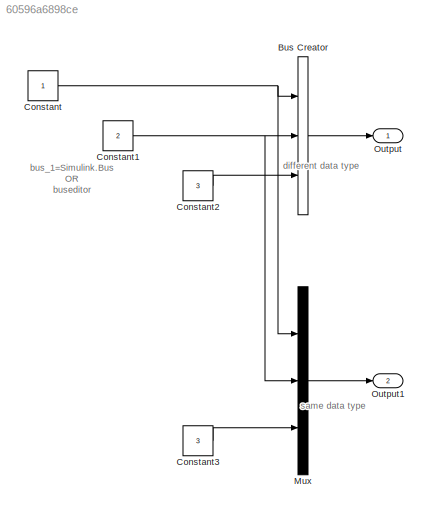
MODEL slx_60596a6898ce
KIND model
CONFIG AbsTol = auto
CONFIG EnableMultiTasking = off
CONFIG FixedStep = auto
CONFIG MaxStep = auto
CONFIG MinStep = auto
CONFIG RelTol = 1e-3
CONFIG SampleTimeConstraint = Unconstrained
CONFIG Solver = VariableStepAuto
CONFIG SolverName = VariableStepAuto
CONFIG StartTime = 0.0
CONFIG StopTime = 10.0
BLOCK [BusCreator] Bus Creator
  DisplayOption = bar
  InheritFromInputs = on
  Inputs = 3
  OutDataTypeStr = Bus:bus_1
  Ports = [3, 1]
BLOCK [Constant] Constant
  OutDataTypeStr = int16
BLOCK [Constant] Constant1
  OutDataTypeStr = int16
  Value = 2
BLOCK [Constant] Constant2
  OutDataTypeStr = uint16
  Value = 3
BLOCK [Constant] Constant3
  OutDataTypeStr = int16
  Value = 3
BLOCK [Mux] Mux
  DisplayOption = bar
  Inputs = 3
  Ports = [3, 1]
BLOCK [Outport] Output
  IconDisplay = Port number
  OutDataTypeStr = Bus:bus_1
BLOCK [Outport] Output1
  IconDisplay = Port number
  Port = 2
ANNOTATION (root): bus_1=Simulink.Bus OR buseditor
ANNOTATION (root): different data type
ANNOTATION (root): same data type
LINE Bus Creator:1 -> Output:1
NET Constant1:1 -> Bus Creator:2, Mux:2
LINE Constant2:1 -> Bus Creator:3
LINE Constant3:1 -> Mux:3
NET Constant:1 -> Bus Creator:1, Mux:1
LINE Mux:1 -> Output1:1
note: NET lines group one-source signal fan-out (src -> all destinations, sorted); 1:1 wires keep LINE
